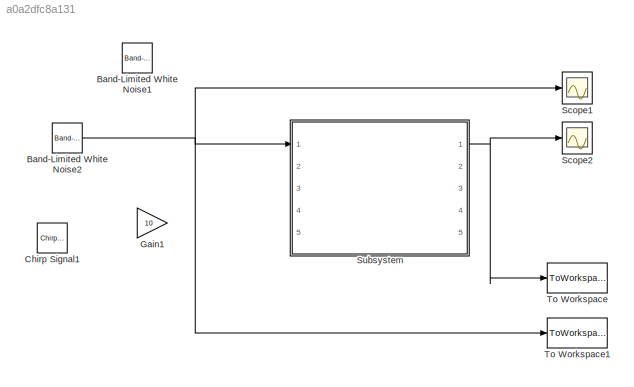
MODEL slx_a0a2dfc8a131
KIND model
CONFIG AbsTol = 1e-6
CONFIG FixedStep = auto
CONFIG MaxStep = Ts
CONFIG MinStep = auto
CONFIG RelTol = 1e-6
CONFIG SampleTimeConstraint = Unconstrained
CONFIG Solver = ode45
CONFIG SolverMode = Auto
CONFIG SolverName = ode45
CONFIG StartTime = 0.0
CONFIG StopTime = 10
BLOCK [Reference] Band-Limited White Noise1  REF=simulink/Sources/Band-Limited
White Noise
  Cov = [0.1]
  Ports = [0, 1]
  SourceBlock = simulink/Sources/Band-Limited\nWhite Noise
  SourceType = Band-Limited White Noise.
  Ts = Ts
  VectorParams1D = on
  seed = [round(rand*10000)]
BLOCK [Reference] Band-Limited White Noise2  REF=simulink/Sources/Band-Limited
White Noise
  Cov = [0.1]
  Ports = [0, 1]
  SourceBlock = simulink/Sources/Band-Limited\nWhite Noise
  SourceType = Band-Limited White Noise.
  Ts = Ts
  VectorParams1D = on
  seed = [round(rand*10000)]
BLOCK [Reference] Chirp Signal1  REF=simulink/Sources/Chirp Signal
  Ports = [0, 1]
  SourceBlock = simulink/Sources/Chirp Signal
  SourceType = chirp
  T = 10
  VectorParams1D = on
  f1 = 0.01
  f2 = 100
BLOCK [Gain] Gain1
  Gain = 10
  OutDataTypeStr = Inherit: Inherit via internal rule
  ParamDataTypeStr = Inherit: Inherit via internal rule
  SaturateOnIntegerOverflow = off
BLOCK [Scope] Scope1
  Floating = off
  LimitDataPoints = off
  NumInputPorts = 1
  Ports = [1]
  TimeRange = 1.600000000000001
  YMax = 25
  YMin = -22.5
BLOCK [Scope] Scope2
  Floating = off
  LimitDataPoints = off
  NumInputPorts = 1
  Ports = [1]
  SaveName = ScopeData2
  TimeRange = 2
  YMax = -0.525
  YMin = -0.725
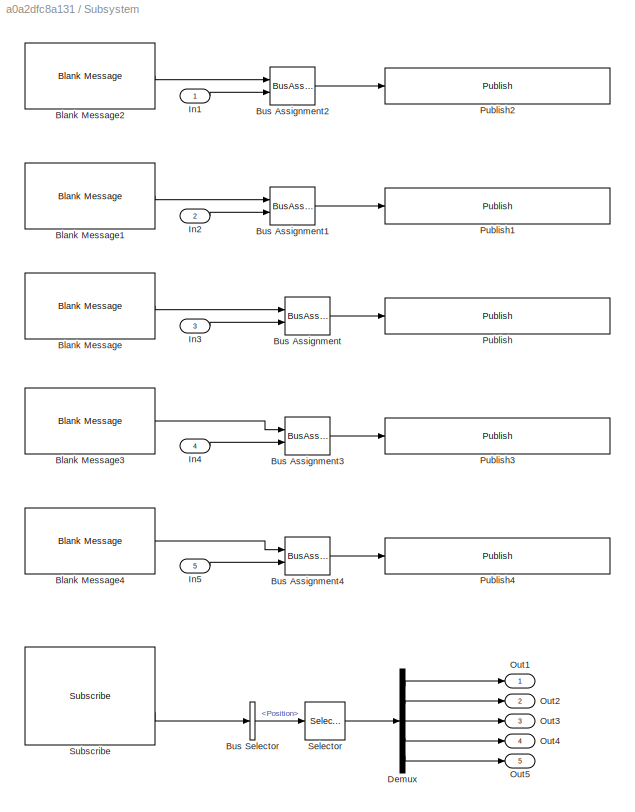
BLOCK [SubSystem] Subsystem
  Ports = [5, 5]
  RequestExecContextInheritance = off
BLOCK [Reference] Subsystem/Blank Message  REF=robotlib/Blank Message
  Ports = [0, 1]
  SampleTime = inf
  SourceBlock = robotlib/Blank Message
  SourceLibraryInfo = This block requires Robotics System Toolbox
  SourceType = ROS Blank Message
  messageType = std_msgs/Float64
BLOCK [Reference] Subsystem/Blank Message1  REF=robotlib/Blank Message
  Ports = [0, 1]
  SampleTime = inf
  SourceBlock = robotlib/Blank Message
  SourceLibraryInfo = This block requires Robotics System Toolbox
  SourceType = ROS Blank Message
  messageType = std_msgs/Float64
BLOCK [Reference] Subsystem/Blank Message2  REF=robotlib/Blank Message
  Ports = [0, 1]
  SampleTime = inf
  SourceBlock = robotlib/Blank Message
  SourceLibraryInfo = This block requires Robotics System Toolbox
  SourceType = ROS Blank Message
  messageType = std_msgs/Float64
BLOCK [Reference] Subsystem/Blank Message3  REF=robotlib/Blank Message
  Ports = [0, 1]
  SampleTime = inf
  SourceBlock = robotlib/Blank Message
  SourceLibraryInfo = This block requires Robotics System Toolbox
  SourceType = ROS Blank Message
  messageType = std_msgs/Float64
BLOCK [Reference] Subsystem/Blank Message4  REF=robotlib/Blank Message
  Ports = [0, 1]
  SampleTime = inf
  SourceBlock = robotlib/Blank Message
  SourceLibraryInfo = This block requires Robotics System Toolbox
  SourceType = ROS Blank Message
  messageType = std_msgs/Float64
BLOCK [BusAssignment] Subsystem/Bus Assignment
  AssignedSignals = Data
  Ports = [2, 1]
BLOCK [BusAssignment] Subsystem/Bus Assignment1
  AssignedSignals = Data
  Ports = [2, 1]
BLOCK [BusAssignment] Subsystem/Bus Assignment2
  AssignedSignals = Data
  Ports = [2, 1]
BLOCK [BusAssignment] Subsystem/Bus Assignment3
  AssignedSignals = Data
  Ports = [2, 1]
BLOCK [BusAssignment] Subsystem/Bus Assignment4
  AssignedSignals = Data
  Ports = [2, 1]
BLOCK [BusSelector] Subsystem/Bus Selector
  OutputSignals = Position
  Ports = [1, 1]
BLOCK [Demux] Subsystem/Demux
  DisplayOption = bar
  Outputs = 5
  Ports = [1, 5]
BLOCK [Inport] Subsystem/In1
  IconDisplay = Port number
BLOCK [Inport] Subsystem/In2
  IconDisplay = Port number
  Port = 2
BLOCK [Inport] Subsystem/In3
  IconDisplay = Port number
  Port = 3
BLOCK [Inport] Subsystem/In4
  IconDisplay = Port number
  Port = 4
BLOCK [Inport] Subsystem/In5
  IconDisplay = Port number
  Port = 5
BLOCK [Outport] Subsystem/Out1
  IconDisplay = Port number
BLOCK [Outport] Subsystem/Out2
  IconDisplay = Port number
  Port = 2
BLOCK [Outport] Subsystem/Out3
  IconDisplay = Port number
  Port = 3
BLOCK [Outport] Subsystem/Out4
  IconDisplay = Port number
  Port = 4
BLOCK [Outport] Subsystem/Out5
  IconDisplay = Port number
  Port = 5
BLOCK [Reference] Subsystem/Publish  REF=robotlib/Publish
  Ports = [1]
  SourceBlock = robotlib/Publish
  SourceLibraryInfo = This block requires Robotics System Toolbox
  SourceType = ROS Publish
  messageQueueLength = 1
  messageType = std_msgs/Float64
  topic = /puma560/joint_3_effort_controller/command
  topicSource = Specify your own
BLOCK [Reference] Subsystem/Publish1  REF=robotlib/Publish
  Ports = [1]
  SourceBlock = robotlib/Publish
  SourceLibraryInfo = This block requires Robotics System Toolbox
  SourceType = ROS Publish
  messageQueueLength = 1
  messageType = std_msgs/Float64
  topic = /puma560/joint_2_effort_controller/command
  topicSource = Specify your own
BLOCK [Reference] Subsystem/Publish2  REF=robotlib/Publish
  Ports = [1]
  SourceBlock = robotlib/Publish
  SourceLibraryInfo = This block requires Robotics System Toolbox
  SourceType = ROS Publish
  messageQueueLength = 1
  messageType = std_msgs/Float64
  topic = /puma560/joint_1_effort_controller/command
  topicSource = Specify your own
BLOCK [Reference] Subsystem/Publish3  REF=robotlib/Publish
  Ports = [1]
  SourceBlock = robotlib/Publish
  SourceLibraryInfo = This block requires Robotics System Toolbox
  SourceType = ROS Publish
  messageQueueLength = 1
  messageType = std_msgs/Float64
  topic = /puma560/joint_4_effort_controller/command
  topicSource = Specify your own
BLOCK [Reference] Subsystem/Publish4  REF=robotlib/Publish
  Ports = [1]
  SourceBlock = robotlib/Publish
  SourceLibraryInfo = This block requires Robotics System Toolbox
  SourceType = ROS Publish
  messageQueueLength = 1
  messageType = std_msgs/Float64
  topic = /puma560/joint_5_effort_controller/command
  topicSource = Specify your own
BLOCK [Selector] Subsystem/Selector
  Indices = [1 2 3 4 5]
  InputPortWidth = 128
  Ports = [1, 1]
BLOCK [Reference] Subsystem/Subscribe  REF=robotlib/Subscribe
  Ports = [0, 2]
  SourceBlock = robotlib/Subscribe
  SourceLibraryInfo = This block requires Robotics System Toolbox
  SourceType = ROS Subscribe
  messageQueueLength = 1
  messageType = sensor_msgs/JointState
  sampleTime = -1
  topic = /puma560/joint_states
  topicSource = Specify your own
BLOCK [ToWorkspace] To Workspace
  FixptAsFi = on
  MaxDataPoints = inf
  Ports = [1]
  SampleTime = -1
  Save2DSignal = 3-D array (concatenate along third dimension)
  SaveFormat = Timeseries
  VariableName = output2
BLOCK [ToWorkspace] To Workspace1
  FixptAsFi = on
  MaxDataPoints = inf
  Ports = [1]
  SampleTime = -1
  Save2DSignal = 3-D array (concatenate along third dimension)
  SaveFormat = Timeseries
  VariableName = input2
NET Band-Limited White Noise2:1 -> Scope1:1, Subsystem:1, To Workspace1:1
LINE Subsystem/Blank Message1:1 -> Subsystem/Bus Assignment1:1
LINE Subsystem/Blank Message2:1 -> Subsystem/Bus Assignment2:1
LINE Subsystem/Blank Message3:1 -> Subsystem/Bus Assignment3:1
LINE Subsystem/Blank Message4:1 -> Subsystem/Bus Assignment4:1
LINE Subsystem/Blank Message:1 -> Subsystem/Bus Assignment:1
LINE Subsystem/Bus Assignment1:1 -> Subsystem/Publish1:1
LINE Subsystem/Bus Assignment2:1 -> Subsystem/Publish2:1
LINE Subsystem/Bus Assignment3:1 -> Subsystem/Publish3:1
LINE Subsystem/Bus Assignment4:1 -> Subsystem/Publish4:1
LINE Subsystem/Bus Assignment:1 -> Subsystem/Publish:1
LINE Subsystem/Bus Selector:1 -> Subsystem/Selector:1
LINE Subsystem/Demux:1 -> Subsystem/Out1:1
LINE Subsystem/Demux:2 -> Subsystem/Out2:1
LINE Subsystem/Demux:3 -> Subsystem/Out3:1
LINE Subsystem/Demux:4 -> Subsystem/Out4:1
LINE Subsystem/Demux:5 -> Subsystem/Out5:1
LINE Subsystem/In1:1 -> Subsystem/Bus Assignment2:2
LINE Subsystem/In2:1 -> Subsystem/Bus Assignment1:2
LINE Subsystem/In3:1 -> Subsystem/Bus Assignment:2
LINE Subsystem/In4:1 -> Subsystem/Bus Assignment3:2
LINE Subsystem/In5:1 -> Subsystem/Bus Assignment4:2
LINE Subsystem/Selector:1 -> Subsystem/Demux:1
LINE Subsystem/Subscribe:2 -> Subsystem/Bus Selector:1
NET Subsystem:1 -> Scope2:1, To Workspace:1
note: NET lines group one-source signal fan-out (src -> all destinations, sorted); 1:1 wires keep LINE
